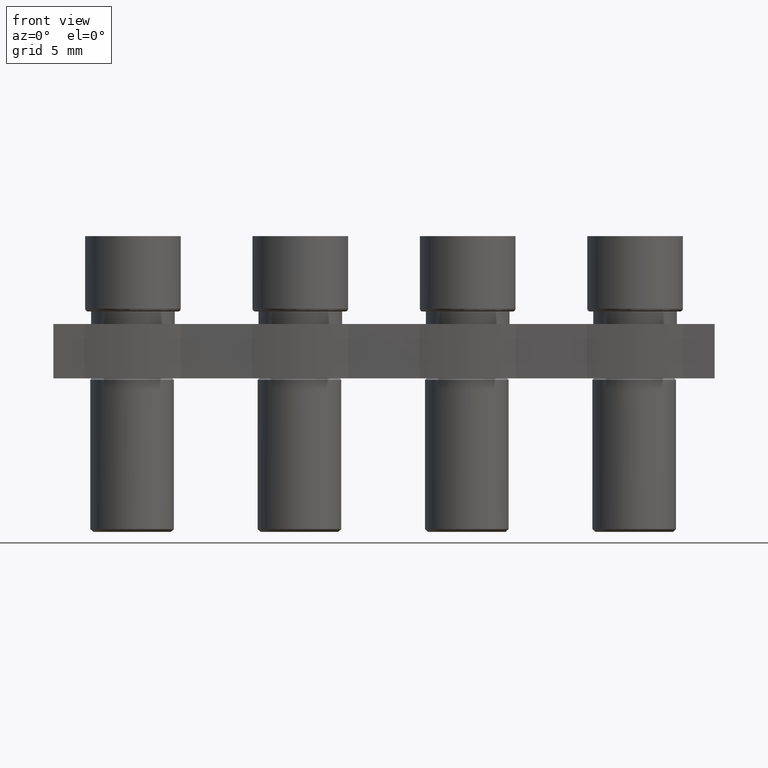
[diagram: clean part render]
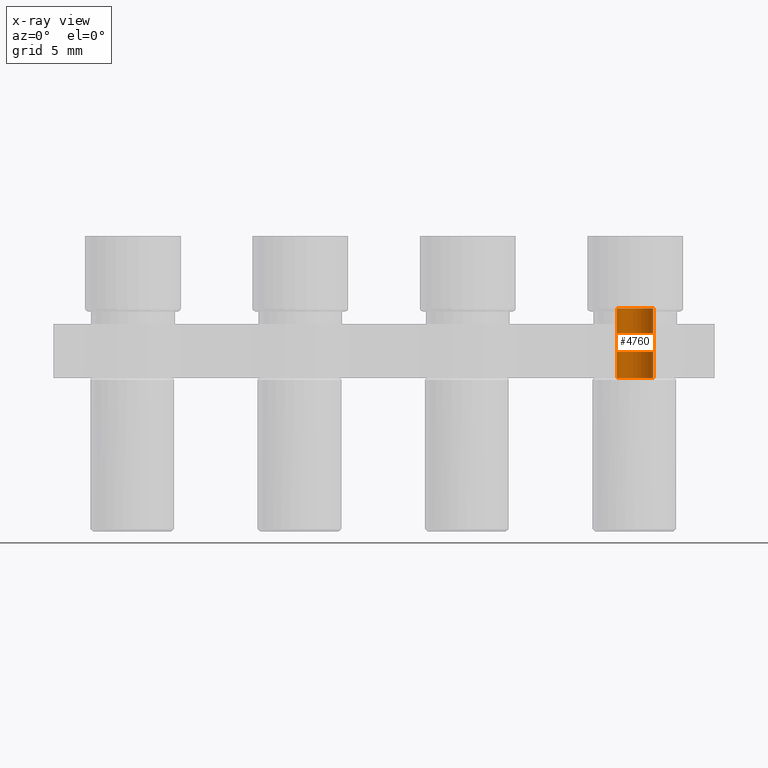
[diagram: x-ray — body ghosted, one internal face saturated and labeled with its STEP entity id]
A machine part, front view, then the same camera in x-ray: the body is ghosted and one INTERNAL B-rep face — a face not visible from any outside direction — is saturated and labeled: STEP entity #4760.
In plain terms, the highlighted cylindrical surface (edge-blend (fillet) strip) has radius 1.3 mm, axis along (0, 0, -1).
Its self-contained STEP definition (entity closure, byte-faithful):
#15 = EDGE_CURVE ( 'NONE', #521, #531, #5248, .T. ) ;
#21 = EDGE_CURVE ( 'NONE', #518, #531, #2822, .T. ) ;
#34 = EDGE_CURVE ( 'NONE', #518, #545, #5313, .T. ) ;
#37 = EDGE_CURVE ( 'NONE', #545, #521, #2903, .T. ) ;
#137 = AXIS2_PLACEMENT_3D ( 'NONE', #3996, #4000, #3986 ) ;
#518 = VERTEX_POINT ( 'NONE', #2204 ) ;
#521 = VERTEX_POINT ( 'NONE', #2212 ) ;
#531 = VERTEX_POINT ( 'NONE', #2186 ) ;
#545 = VERTEX_POINT ( 'NONE', #2231 ) ;
#966 = EDGE_LOOP ( 'NONE', ( #2369, #2360, #2309, #2320 ) ) ;
#2186 = CARTESIAN_POINT ( 'NONE',  ( 10.69999999999999900, 1.465963500825148300E-015, -4.800000000000002500 ) ) ;
#2204 = CARTESIAN_POINT ( 'NONE',  ( 10.69999999999999900, 1.465963500825148300E-015, 0.2156922148392366500 ) ) ;
#2212 = CARTESIAN_POINT ( 'NONE',  ( 13.30000000000000100, 1.625167584714304300E-015, -4.800000000000002500 ) ) ;
#2231 = CARTESIAN_POINT ( 'NONE',  ( 13.30000000000000100, 1.625167584714304300E-015, 0.2156922148392366500 ) ) ;
#2309 = ORIENTED_EDGE ( 'NONE', *, *, #15, .T. ) ;
#2320 = ORIENTED_EDGE ( 'NONE', *, *, #21, .F. ) ;
#2360 = ORIENTED_EDGE ( 'NONE', *, *, #37, .T. ) ;
#2369 = ORIENTED_EDGE ( 'NONE', *, *, #34, .T. ) ;
#2801 = CARTESIAN_POINT ( 'NONE',  ( 10.69999999999999900, 1.465963500825148300E-015, -18.28430778516076700 ) ) ;
#2808 = DIRECTION ( 'NONE',  ( -0.0000000000000000000, -0.0000000000000000000, 1.000000000000000000 ) ) ;
#2820 = CARTESIAN_POINT ( 'NONE',  ( 12.00000000000000000, 1.465963500825148300E-015, -4.800000000000002500 ) ) ;
#2821 = DIRECTION ( 'NONE',  ( 0.0000000000000000000, 0.0000000000000000000, -1.000000000000000000 ) ) ;
#2822 = LINE ( 'NONE', #2801, #5277 ) ;
#2824 = DIRECTION ( 'NONE',  ( -1.000000000000000000, 0.0000000000000000000, 0.0000000000000000000 ) ) ;
#2862 = CARTESIAN_POINT ( 'NONE',  ( 12.00000000000000000, 1.465963500825148300E-015, 0.2156922148392366500 ) ) ;
#2884 = DIRECTION ( 'NONE',  ( 0.0000000000000000000, 0.0000000000000000000, -1.000000000000000000 ) ) ;
#2891 = CARTESIAN_POINT ( 'NONE',  ( 13.30000000000000100, 1.625167584714304300E-015, -18.28430778516076700 ) ) ;
#2903 = LINE ( 'NONE', #2891, #5298 ) ;
#2906 = DIRECTION ( 'NONE',  ( -1.000000000000000000, 0.0000000000000000000, 0.0000000000000000000 ) ) ;
#2920 = DIRECTION ( 'NONE',  ( 0.0000000000000000000, 0.0000000000000000000, -1.000000000000000000 ) ) ;
#3986 = DIRECTION ( 'NONE',  ( -1.000000000000000000, 0.0000000000000000000, 0.0000000000000000000 ) ) ;
#3989 = FACE_OUTER_BOUND ( 'NONE', #966, .T. ) ;
#3992 = CYLINDRICAL_SURFACE ( 'NONE', #137, 1.300000000000000700 ) ;
#3996 = CARTESIAN_POINT ( 'NONE',  ( 12.00000000000000000, 1.465963500825148300E-015, -18.28430778516076700 ) ) ;
#4000 = DIRECTION ( 'NONE',  ( 0.0000000000000000000, 0.0000000000000000000, -1.000000000000000000 ) ) ;
#4760 = ADVANCED_FACE ( 'NONE', ( #3989 ), #3992, .T. ) ;
#5248 = CIRCLE ( 'NONE', #5289, 1.300000000000000700 ) ;
#5277 = VECTOR ( 'NONE', #2821, 1000.000000000000000 ) ;
#5289 = AXIS2_PLACEMENT_3D ( 'NONE', #2820, #2808, #2824 ) ;
#5298 = VECTOR ( 'NONE', #2884, 1000.000000000000000 ) ;
#5313 = CIRCLE ( 'NONE', #5347, 1.300000000000000700 ) ;
#5347 = AXIS2_PLACEMENT_3D ( 'NONE', #2862, #2920, #2906 ) ;